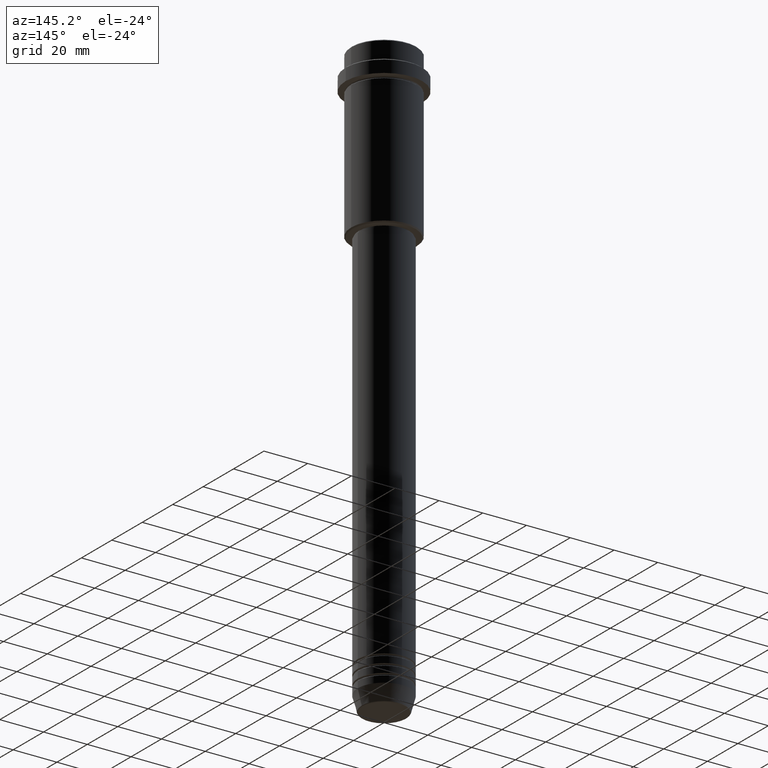
[diagram: clean part render]
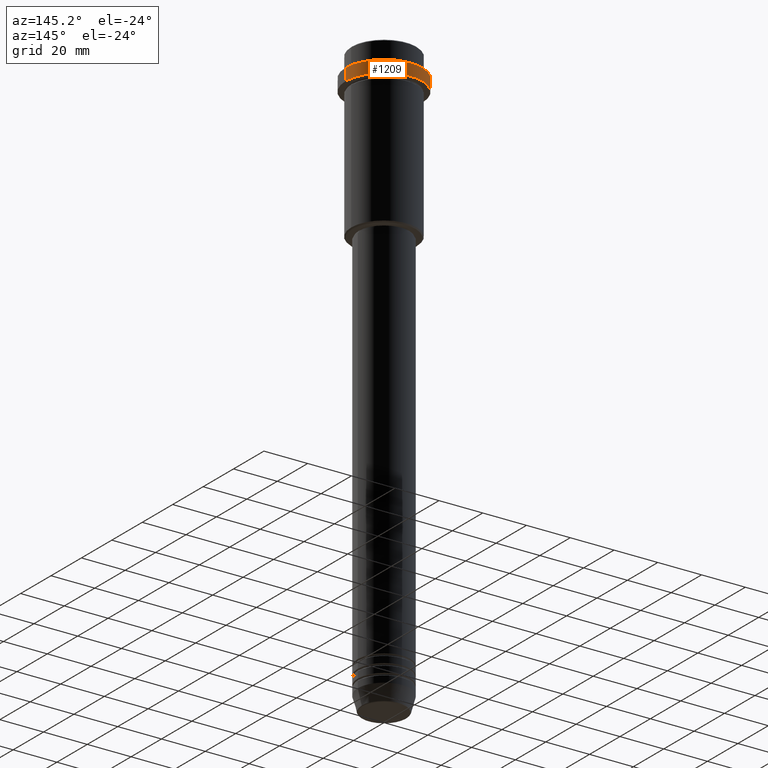
[diagram: same view with one face highlighted and labeled with its STEP entity id]
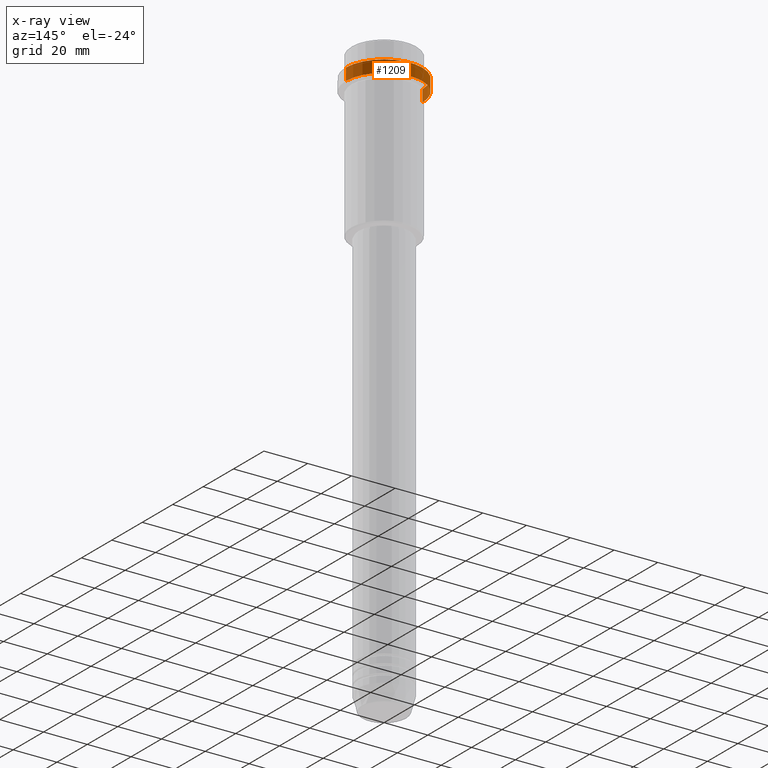
[diagram: x-ray of the same camera — body ghosted, the highlighted face saturated]
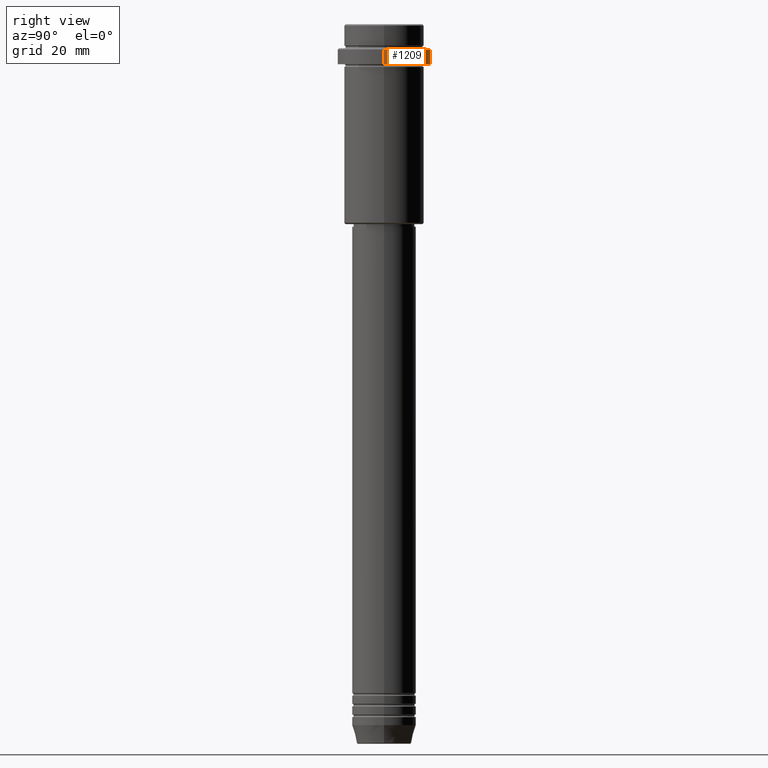
[diagram: same view with one face highlighted and labeled with its STEP entity id]
A machine part, auxiliary view. The second image highlights one B-rep face of the part: STEP entity #1209.
The next image is the same camera in x-ray: the body ghosted, the highlighted face saturated — about 0% of this face is hidden behind the body in this view.
A second angle (right view) of the same face is appended — the face is thin or edge-on in the first view.
In plain terms, the highlighted cylindrical surface (partial cylindrical patch) has radius 17.5 mm, axis along (-0, -0, 1).
Its self-contained STEP definition (entity closure, byte-faithful):
#40 = CARTESIAN_POINT ( 'NONE',  ( 17.50000000000000000, 0.000000000000000000, 0.000000000000000000 ) ) ;
#64 = DIRECTION ( 'NONE',  ( 1.000000000000000000, 0.000000000000000000, 0.000000000000000000 ) ) ;
#65 = AXIS2_PLACEMENT_3D ( 'NONE', #384, #692, #64 ) ;
#80 = DIRECTION ( 'NONE',  ( 1.000000000000000000, 0.000000000000000000, 0.000000000000000000 ) ) ;
#163 = VERTEX_POINT ( 'NONE', #1350 ) ;
#228 = AXIS2_PLACEMENT_3D ( 'NONE', #403, #726, #1178 ) ;
#248 = DIRECTION ( 'NONE',  ( -0.000000000000000000, -0.000000000000000000, 1.000000000000000000 ) ) ;
#374 = VERTEX_POINT ( 'NONE', #739 ) ;
#384 = CARTESIAN_POINT ( 'NONE',  ( 0.000000000000000000, 0.000000000000000000, -15.00000000000000178 ) ) ;
#403 = CARTESIAN_POINT ( 'NONE',  ( 0.000000000000000000, 0.000000000000000000, 0.000000000000000000 ) ) ;
#449 = VERTEX_POINT ( 'NONE', #1411 ) ;
#523 = CYLINDRICAL_SURFACE ( 'NONE', #228, 17.50000000000000000 ) ;
#534 = VERTEX_POINT ( 'NONE', #1304 ) ;
#578 = EDGE_CURVE ( 'NONE', #449, #163, #1006, .T. ) ;
#623 = ORIENTED_EDGE ( 'NONE', *, *, #1246, .T. ) ;
#636 = FACE_OUTER_BOUND ( 'NONE', #818, .T. ) ;
#656 = VECTOR ( 'NONE', #248, 1000.000000000000000 ) ;
#660 = AXIS2_PLACEMENT_3D ( 'NONE', #961, #1051, #80 ) ;
#674 = DIRECTION ( 'NONE',  ( -0.000000000000000000, -0.000000000000000000, 1.000000000000000000 ) ) ;
#692 = DIRECTION ( 'NONE',  ( -0.000000000000000000, -0.000000000000000000, 1.000000000000000000 ) ) ;
#726 = DIRECTION ( 'NONE',  ( -0.000000000000000000, -0.000000000000000000, 1.000000000000000000 ) ) ;
#739 = CARTESIAN_POINT ( 'NONE',  ( -17.50000000000000000, 2.143131898507868248E-15, -15.00000000000000178 ) ) ;
#812 = VECTOR ( 'NONE', #674, 1000.000000000000000 ) ;
#818 = EDGE_LOOP ( 'NONE', ( #977, #1207, #623, #1388 ) ) ;
#961 = CARTESIAN_POINT ( 'NONE',  ( 0.000000000000000000, 0.000000000000000000, -9.500000000000028422 ) ) ;
#976 = EDGE_CURVE ( 'NONE', #374, #534, #1320, .T. ) ;
#977 = ORIENTED_EDGE ( 'NONE', *, *, #1018, .T. ) ;
#1006 = LINE ( 'NONE', #40, #656 ) ;
#1018 = EDGE_CURVE ( 'NONE', #449, #374, #1219, .T. ) ;
#1051 = DIRECTION ( 'NONE',  ( 0.000000000000000000, 0.000000000000000000, -1.000000000000000000 ) ) ;
#1086 = CARTESIAN_POINT ( 'NONE',  ( -17.50000000000000000, 2.143131898507868248E-15, 0.000000000000000000 ) ) ;
#1178 = DIRECTION ( 'NONE',  ( 1.000000000000000000, 0.000000000000000000, 0.000000000000000000 ) ) ;
#1197 = CIRCLE ( 'NONE', #660, 17.50000000000000000 ) ;
#1207 = ORIENTED_EDGE ( 'NONE', *, *, #976, .T. ) ;
#1209 = ADVANCED_FACE ( 'NONE', ( #636 ), #523, .T. ) ;
#1219 = CIRCLE ( 'NONE', #65, 17.50000000000000000 ) ;
#1246 = EDGE_CURVE ( 'NONE', #534, #163, #1197, .T. ) ;
#1304 = CARTESIAN_POINT ( 'NONE',  ( -17.50000000000000000, 2.143131898507868248E-15, -9.500000000000028422 ) ) ;
#1320 = LINE ( 'NONE', #1086, #812 ) ;
#1350 = CARTESIAN_POINT ( 'NONE',  ( 17.50000000000000000, 0.000000000000000000, -9.500000000000028422 ) ) ;
#1388 = ORIENTED_EDGE ( 'NONE', *, *, #578, .F. ) ;
#1411 = CARTESIAN_POINT ( 'NONE',  ( 17.50000000000000000, 0.000000000000000000, -15.00000000000000178 ) ) ;